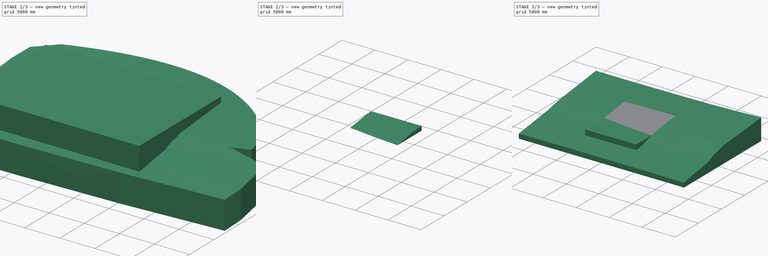
[diagram: build sequence overview — one tinted view per stage of 3, left to right]
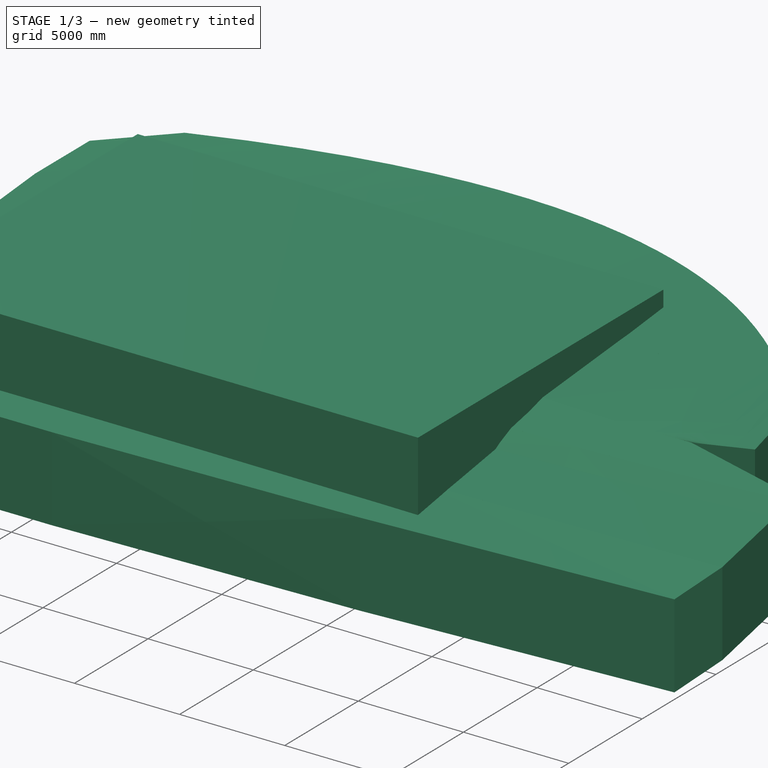
[diagram: stage 1 of 3 — iso view after this stage's code; geometry added in this stage tinted green]
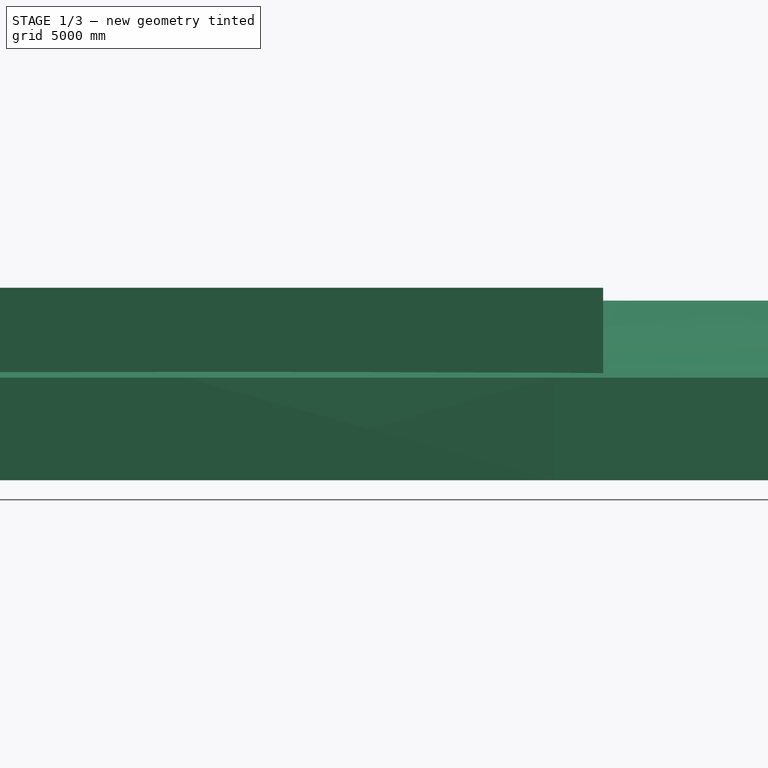
[diagram: stage 1 of 3 — front view after this stage's code; geometry added in this stage tinted green]
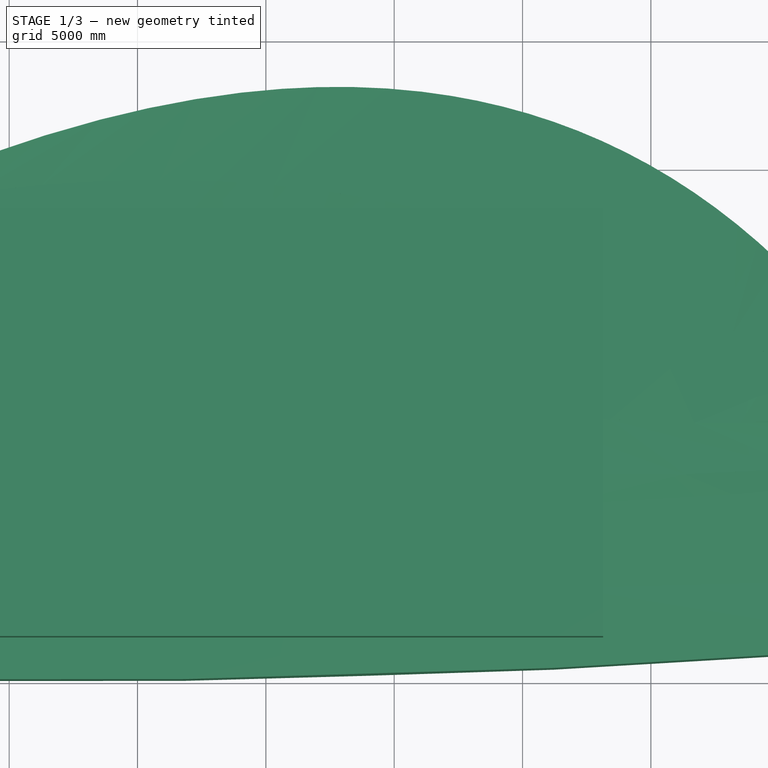
[diagram: stage 1 of 3 — top view after this stage's code; geometry added in this stage tinted green]
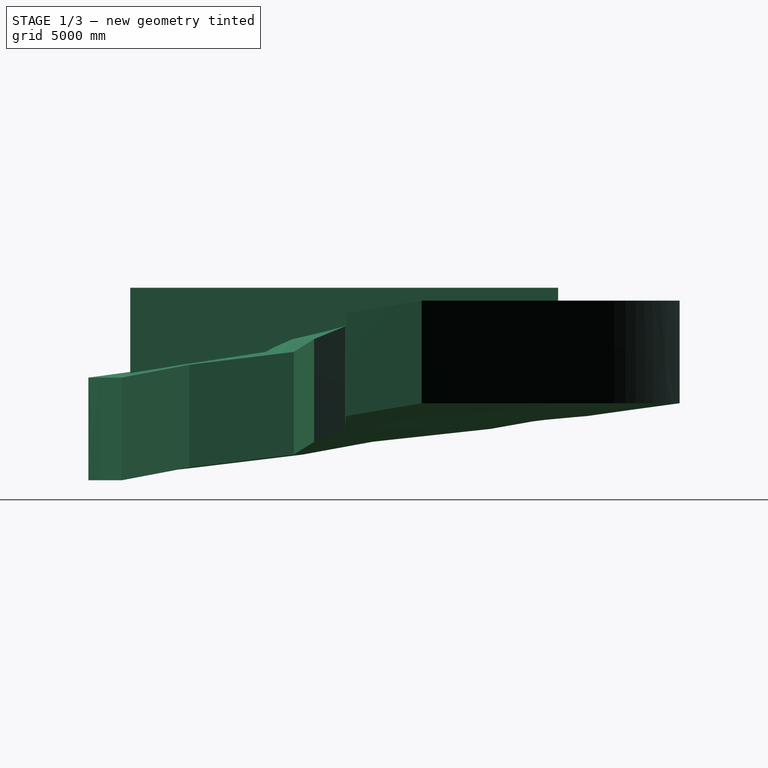
[diagram: stage 1 of 3 — right view after this stage's code; geometry added in this stage tinted green]
FCSTD DOCUMENT  (FreeCAD 1.0R38641 +468 (Git))
Label: Parametric_terrain_R02
License: All rights reserved
LicenseURL: https://en.wikipedia.org/wiki/All_rights_reserved
objects: Sketcher::SketchObject×7, Part::Extrusion×4, App::DocumentObjectGroup×3, Part::Part2DObjectPython×2, App::VarSet×2, Part::MultiCommon×2, Part::Cut×2, App::TextDocument×2, Part::Loft×1, Spreadsheet::Sheet×1
note: 25 computed .brp shape members not serialized (recipe doc carries the construction recipe); baked Part::Feature solids carry a one-line shape summary decoded from their .brp

FEATURE [Part::Part2DObjectPython] Rectangle  label="Terrain_boundaries"  # Draft 2D object (typed FeaturePython)
  Area = 4.16661e+08
  ChamferSize = 0
  Columns = 1
  FilletRadius = 0
  Height = 16666.5
  Length = 25000
  MakeFace = true
  Placement = pos=(-11861,-8288.75,0) rot=(0,0,1;0rad)
  Rows = 1
FEATURE [Part::Extrusion] Extrude002
  Base = -> Rectangle
  Dir = (0,0,1)
  DirMode = 2
  FaceMakerClass = Part::FaceMakerBullseye
  FaceMakerMode = 3
  LengthFwd = 4000
  LengthRev = 0
  Solid = false
  Symmetric = true
  expr: Base = VarSet.A_TerrainBoundaries
  expr: LengthFwd = VarSet.B_VolumeBodyHeight
FEATURE [Sketcher::SketchObject] Sketch  label="Curve_1.50"
  ArcFitTolerance = 1e-06
  FullyConstrained = false
  MakeInternals = false
  Placement = pos=(0,0,1500) rot=(0,0,1;0rad)
  sketch-geometry (6):
    g0: BSplineCurve PolesCount=3 KnotsCount=2 Degree=2 IsPeriodic=0
    g1: Circle [constr] CenterX=-11043 CenterY=10406.8 CenterZ=0 NormalX=0 NormalY=0 NormalZ=1 AngleXU=0 Radius=1
    g2: Circle [constr] CenterX=10907 CenterY=18336.8 CenterZ=0 NormalX=0 NormalY=0 NormalZ=1 AngleXU=0 Radius=1
    g3: Circle [constr] CenterX=22948.4 CenterY=3059.19 CenterZ=0 NormalX=0 NormalY=0 NormalZ=1 AngleXU=0 Radius=1
    g4: GeomPoint [constr] X=-11043 Y=10406.8 Z=0
    g5: GeomPoint [constr] X=22948.4 Y=3059.19 Z=0
  constraints (8):
    c: InternalAlignment(g1,g0)
    c: Weight(g1) = 1
    c: InternalAlignment(g2,g0)
    c: Equal(g2,g1)
    c: InternalAlignment(g3,g0)
    c: Equal(g3,g1)
    c: InternalAlignment(g4,g0)
    c: InternalAlignment(g5,g0)
FEATURE [Sketcher::SketchObject] Sketch001  label="Curve_1.00"
  ArcFitTolerance = 1e-06
  FullyConstrained = false
  MakeInternals = false
  Placement = pos=(0,0,1000) rot=(0,0,1;0rad)
  sketch-geometry (6):
    g0: BSplineCurve PolesCount=3 KnotsCount=2 Degree=2 IsPeriodic=0
    g1: Circle [constr] CenterX=-14270.5 CenterY=8552.75 CenterZ=0 NormalX=0 NormalY=0 NormalZ=1 AngleXU=0 Radius=1
    g2: Circle [constr] CenterX=7247.82 CenterY=12478.6 CenterZ=0 NormalX=0 NormalY=0 NormalZ=1 AngleXU=0 Radius=1
    g3: Circle [constr] CenterX=23291.7 CenterY=106.398 CenterZ=0 NormalX=0 NormalY=0 NormalZ=1 AngleXU=0 Radius=1
    g4: GeomPoint [constr] X=-14270.5 Y=8552.75 Z=0
    g5: GeomPoint [constr] X=23291.7 Y=106.398 Z=0
  constraints (8):
    c: InternalAlignment(g1,g0)
    c: Weight(g1) = 1
    c: InternalAlignment(g2,g0)
    c: Equal(g2,g1)
    c: InternalAlignment(g3,g0)
    c: Equal(g3,g1)
    c: InternalAlignment(g4,g0)
    c: InternalAlignment(g5,g0)
FEATURE [Sketcher::SketchObject] Sketch002  label="Curve_0.50"
  ArcFitTolerance = 1e-06
  FullyConstrained = false
  MakeInternals = false
  Placement = pos=(0,0,500) rot=(0,0,1;0rad)
  sketch-geometry (6):
    g0: BSplineCurve PolesCount=3 KnotsCount=2 Degree=2 IsPeriodic=0
    g1: Circle [constr] CenterX=-14888.5 CenterY=5737.3 CenterZ=0 NormalX=0 NormalY=0 NormalZ=1 AngleXU=0 Radius=1
    g2: Circle [constr] CenterX=5770.76 CenterY=-487.002 CenterZ=0 NormalX=0 NormalY=0 NormalZ=1 AngleXU=0 Radius=1
    g3: Circle [constr] CenterX=20278 CenterY=86.8037 CenterZ=0 NormalX=0 NormalY=0 NormalZ=1 AngleXU=0 Radius=1
    g4: GeomPoint [constr] X=-14888.5 Y=5737.3 Z=0
    g5: GeomPoint [constr] X=20278 Y=86.8037 Z=0
  constraints (8):
    c: InternalAlignment(g1,g0)
    c: Weight(g1) = 1
    c: InternalAlignment(g2,g0)
    c: Equal(g2,g1)
    c: InternalAlignment(g3,g0)
    c: Equal(g3,g1)
    c: InternalAlignment(g4,g0)
    c: InternalAlignment(g5,g0)
FEATURE [Sketcher::SketchObject] Sketch003  label="Curve_0.00"
  ArcFitTolerance = 1e-06
  FullyConstrained = false
  MakeInternals = false
  sketch-geometry (6):
    g0: BSplineCurve PolesCount=3 KnotsCount=2 Degree=2 IsPeriodic=0
    g1: Circle [constr] CenterX=-15000 CenterY=1146.58 CenterZ=0 NormalX=0 NormalY=0 NormalZ=1 AngleXU=0 Radius=1
    g2: Circle [constr] CenterX=7798.77 CenterY=-3639.72 CenterZ=0 NormalX=0 NormalY=0 NormalZ=1 AngleXU=0 Radius=1
    g3: Circle [constr] CenterX=26745.3 CenterY=-1127.56 CenterZ=0 NormalX=0 NormalY=0 NormalZ=1 AngleXU=0 Radius=1
    g4: GeomPoint [constr] X=-15000 Y=1146.58 Z=0
    g5: GeomPoint [constr] X=26745.3 Y=-1127.56 Z=0
  constraints (8):
    c: InternalAlignment(g1,g0)
    c: Weight(g1) = 1
    c: InternalAlignment(g2,g0)
    c: Equal(g2,g1)
    c: InternalAlignment(g3,g0)
    c: Equal(g3,g1)
    c: InternalAlignment(g4,g0)
    c: InternalAlignment(g5,g0)
FEATURE [Sketcher::SketchObject] Sketch004  label="Curve_-0.50"
  ArcFitTolerance = 1e-06
  FullyConstrained = false
  MakeInternals = false
  Placement = pos=(0,0,-500) rot=(0,0,1;0rad)
  sketch-geometry (6):
    g0: BSplineCurve PolesCount=3 KnotsCount=2 Degree=2 IsPeriodic=0
    g1: Circle [constr] CenterX=-15413.2 CenterY=-1576.61 CenterZ=0 NormalX=0 NormalY=0 NormalZ=1 AngleXU=0 Radius=1
    g2: Circle [constr] CenterX=5192.43 CenterY=-4647.25 CenterZ=0 NormalX=0 NormalY=0 NormalZ=1 AngleXU=0 Radius=1
    g3: Circle [constr] CenterX=25651.2 CenterY=-1919.96 CenterZ=0 NormalX=0 NormalY=0 NormalZ=1 AngleXU=0 Radius=1
    g4: GeomPoint [constr] X=-15413.2 Y=-1576.61 Z=0
    g5: GeomPoint [constr] X=25651.2 Y=-1919.96 Z=0
  constraints (8):
    c: InternalAlignment(g1,g0)
    c: Weight(g1) = 1
    c: InternalAlignment(g2,g0)
    c: Equal(g2,g1)
    c: InternalAlignment(g3,g0)
    c: Equal(g3,g1)
    c: InternalAlignment(g4,g0)
    c: InternalAlignment(g5,g0)
FEATURE [Sketcher::SketchObject] Sketch005  label="Curve_-1.00"
  ArcFitTolerance = 1e-06
  FullyConstrained = false
  MakeInternals = false
  Placement = pos=(0,0,-1000) rot=(0,0,1;0rad)
  sketch-geometry (6):
    g0: BSplineCurve PolesCount=3 KnotsCount=2 Degree=2 IsPeriodic=0
    g1: Circle [constr] CenterX=-16809.9 CenterY=-5704.62 CenterZ=0 NormalX=0 NormalY=0 NormalZ=1 AngleXU=0 Radius=1
    g2: Circle [constr] CenterX=4597.35 CenterY=-6897.63 CenterZ=0 NormalX=0 NormalY=0 NormalZ=1 AngleXU=0 Radius=1
    g3: Circle [constr] CenterX=26001.3 CenterY=-5985.66 CenterZ=0 NormalX=0 NormalY=0 NormalZ=1 AngleXU=0 Radius=1
    g4: GeomPoint [constr] X=-16809.9 Y=-5704.62 Z=0
    g5: GeomPoint [constr] X=26001.3 Y=-5985.66 Z=0
  constraints (8):
    c: InternalAlignment(g1,g0)
    c: Weight(g1) = 1
    c: InternalAlignment(g2,g0)
    c: Equal(g2,g1)
    c: InternalAlignment(g3,g0)
    c: Equal(g3,g1)
    c: InternalAlignment(g4,g0)
    c: InternalAlignment(g5,g0)
FEATURE [Sketcher::SketchObject] Sketch006  label="Curve_-1.50"
  ArcFitTolerance = 1e-06
  FullyConstrained = false
  MakeInternals = false
  Placement = pos=(0,0,-1500) rot=(0,0,1;0rad)
  sketch-geometry (6):
    g0: BSplineCurve PolesCount=3 KnotsCount=2 Degree=2 IsPeriodic=0
    g1: Circle [constr] CenterX=-17540.7 CenterY=-9921.21 CenterZ=0 NormalX=0 NormalY=0 NormalZ=1 AngleXU=0 Radius=1
    g2: Circle [constr] CenterX=4047.04 CenterY=-10214 CenterZ=0 NormalX=0 NormalY=0 NormalZ=1 AngleXU=0 Radius=1
    g3: Circle [constr] CenterX=25563.4 CenterY=-8617.35 CenterZ=0 NormalX=0 NormalY=0 NormalZ=1 AngleXU=0 Radius=1
    g4: GeomPoint [constr] X=-17540.7 Y=-9921.21 Z=0
    g5: GeomPoint [constr] X=25563.4 Y=-8617.35 Z=0
  constraints (8):
    c: InternalAlignment(g1,g0)
    c: Weight(g1) = 1
    c: InternalAlignment(g2,g0)
    c: Equal(g2,g1)
    c: InternalAlignment(g3,g0)
    c: Equal(g3,g1)
    c: InternalAlignment(g4,g0)
    c: InternalAlignment(g5,g0)
FEATURE [App::VarSet] VarSet  label="VarSet_Terrain_#_"
  A_ContourLines = -> [Sketch,Sketch001,Sketch002,Sketch003,Sketch004,Sketch005,Sketch006]
  A_CutVolume = false
  A_FillVolume = true
  A_TerrainBoundaries = -> Rectangle
  A_TerrainFinal = true
  A_TerrainOriginal = false
  B_CutHeight = 1000
  B_FillHeight = 1000
  B_PlateauLevel = 0
  B_VolumeBodyHeight = 4000
FEATURE [Part::Loft] Loft
  Closed = false
  MaxDegree = 5
  Ruled = true
  Sections = -> [Sketch,Sketch001,Sketch002,Sketch003,Sketch004,Sketch005,Sketch006]
  Solid = false
  expr: Sections = VarSet.A_ContourLines
FEATURE [Part::Extrusion] Extrude001
  Base = -> Loft
  Dir = (0,0,-1)
  DirMode = 0
  FaceMakerClass = Part::FaceMakerBullseye
  FaceMakerMode = 3
  LengthFwd = 4000
  LengthRev = 0
  Solid = false
  Symmetric = false
  expr: LengthFwd = VarSet.B_VolumeBodyHeight
FEATURE [Part::Part2DObjectPython] Rectangle001  label="Plateau_boundaries_"  # Draft 2D object (typed FeaturePython)
  Area = 6.62603e+07
  ChamferSize = 0
  Columns = 1
  FilletRadius = 0
  Height = 8549.66
  Length = 7750.05
  MakeFace = true
  Placement = pos=(-4224.33,-4872.97,0) rot=(0,0,1;0rad)
  Rows = 1
  expr: .Placement.Base.z = VarSet.B_PlateauLevel
FEATURE [Part::Extrusion] Extrude  label="Cut_"
  Base = -> Rectangle001
  Dir = (0,0,1)
  DirMode = 2
  FaceMakerClass = Part::FaceMakerBullseye
  FaceMakerMode = 3
  LengthFwd = 1000
  LengthRev = 0
  Solid = false
  Symmetric = false
  expr: Base = VarSet001.A_PlateauBoundaries
  expr: LengthFwd = VarSet.B_CutHeight
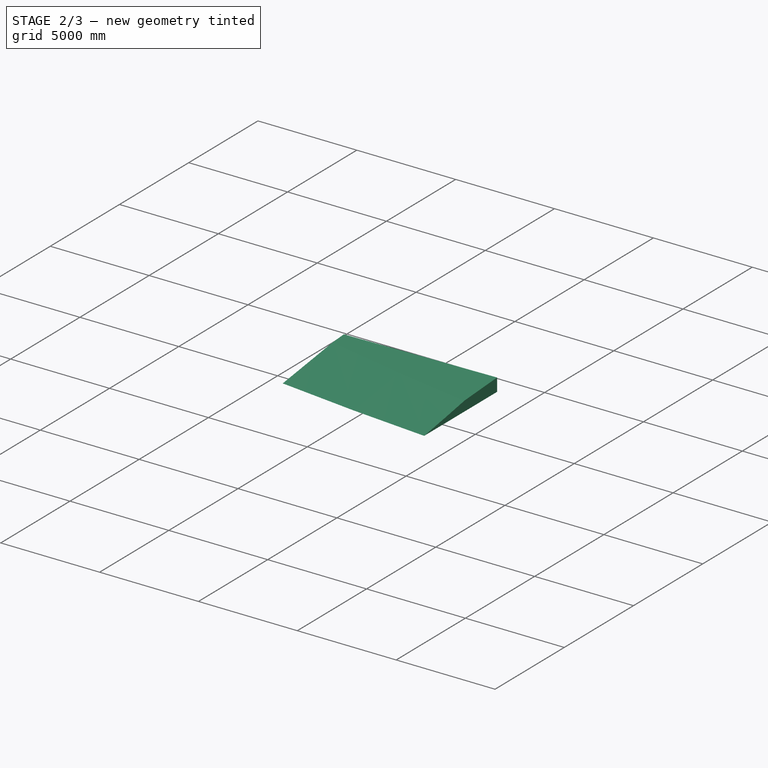
[diagram: stage 2 of 3 — iso view after this stage's code; geometry added in this stage tinted green]
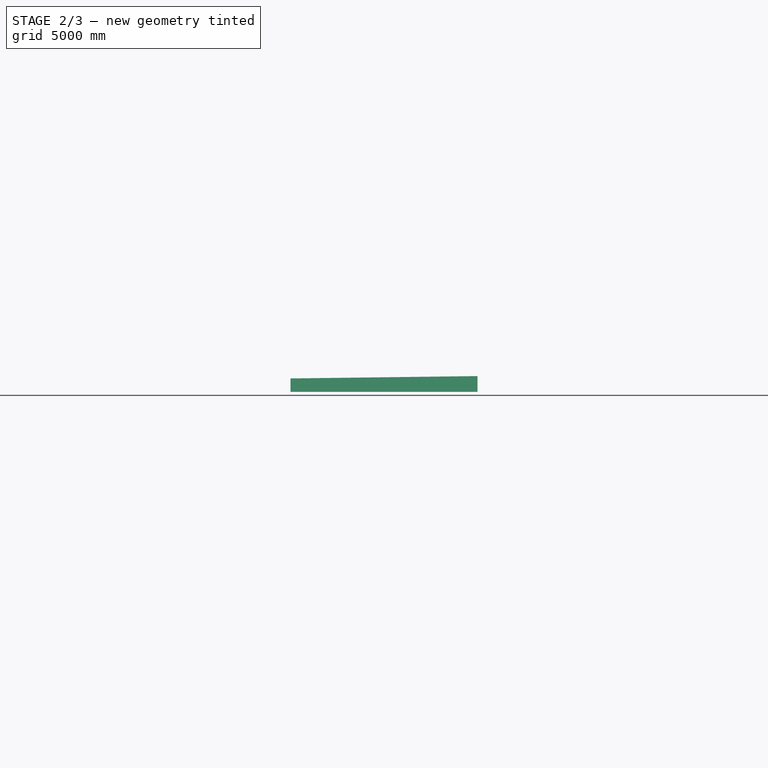
[diagram: stage 2 of 3 — front view after this stage's code; geometry added in this stage tinted green]
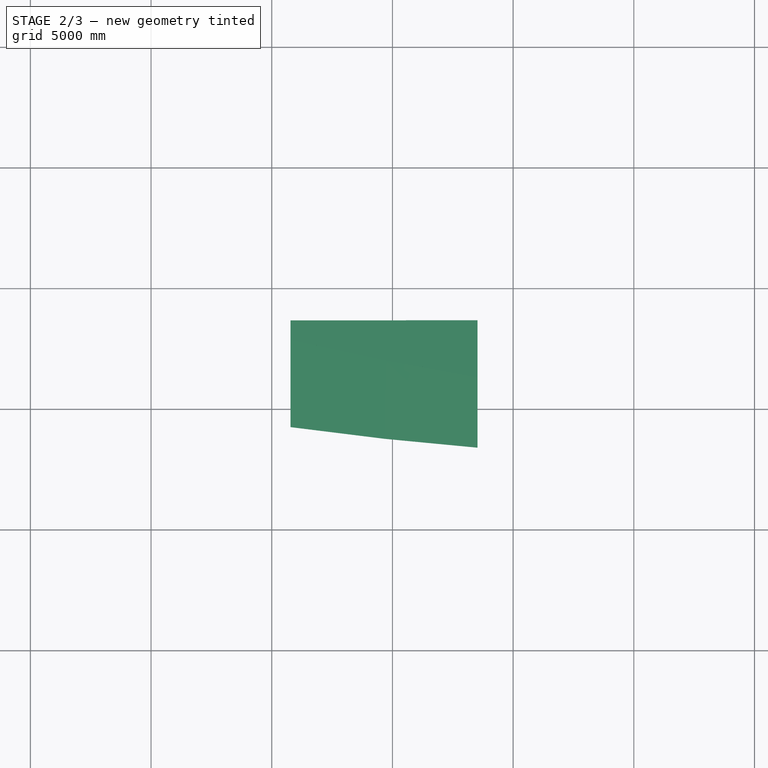
[diagram: stage 2 of 3 — top view after this stage's code; geometry added in this stage tinted green]
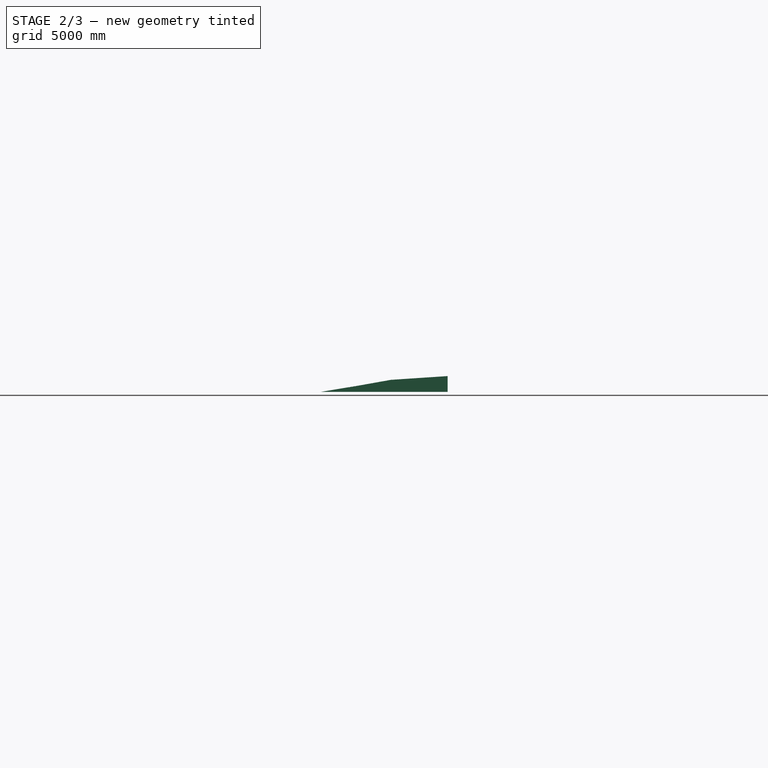
[diagram: stage 2 of 3 — right view after this stage's code; geometry added in this stage tinted green]
FEATURE [Part::MultiCommon] Common  label="Terrain_original_"
  Shapes = -> [Extrude002,Extrude001]
  expr: Visibility = VarSet.A_TerrainOriginal
FEATURE [Part::MultiCommon] Common001  label="Cut_volume_"
  Shapes = -> [Common,Extrude]
  expr: Visibility = VarSet.A_CutVolume
FEATURE [App::DocumentObjectGroup] Group001  label="Terrain_parts_"
  Group = -> [Cut,Cut001,Common001]
FEATURE [App::VarSet] VarSet001  label="VarSet_Plateau_#_"
  A_PlateauBoundaries = -> Rectangle001
FEATURE [Spreadsheet::Sheet] Spreadsheet  label="Earthmoving_quantities_"
  cells = A1='Earthmoving; A3='Plateau area; B3==VarSet001.A_PlateauBoundaries.Shape.Area; A4='Cut; B4==Common001.Shape.Volume; A5='Fill; B5==Cut.Shape.Volume; A6='Total; B6==B4 + B5; A7='Volume/area; B7==B6 / B3
FEATURE [App::TextDocument] Text_document002  label="Guidelines_terrain_file_configurations_"
  Text = Some guidelines for using this component file.\n-----------------------------------------\n\n1. Basic workflow for component configuration\n\nThrough the properties window ("VarSet_Terrain_#_") you can select the basic component parts (contour lines, terrain boundaries) from the elements of an existing topographic survey file. You can also set some dimensions like cut and fill height and plateau level. For earthmoving, select the projected plateau boundaries in the properties window of "VarSet_Earhmoving_#_.\n\nSee also:\nhttps://forum.freecad.org/viewtopic.php?p=803014#p803014
FEATURE [App::TextDocument] Text_document003  label="Guidelines_new_objects_properties_"
  Text = <blob: 3302 chars omitted>
FEATURE [App::DocumentObjectGroup] Group250  label="Guidelines_"
  Group = -> [Text_document003,Text_document002]
FEATURE [App::DocumentObjectGroup] Group  label="Parametric_terrain_#_"
  Group = -> [VarSet,VarSet001,Group001,Spreadsheet,Group250]
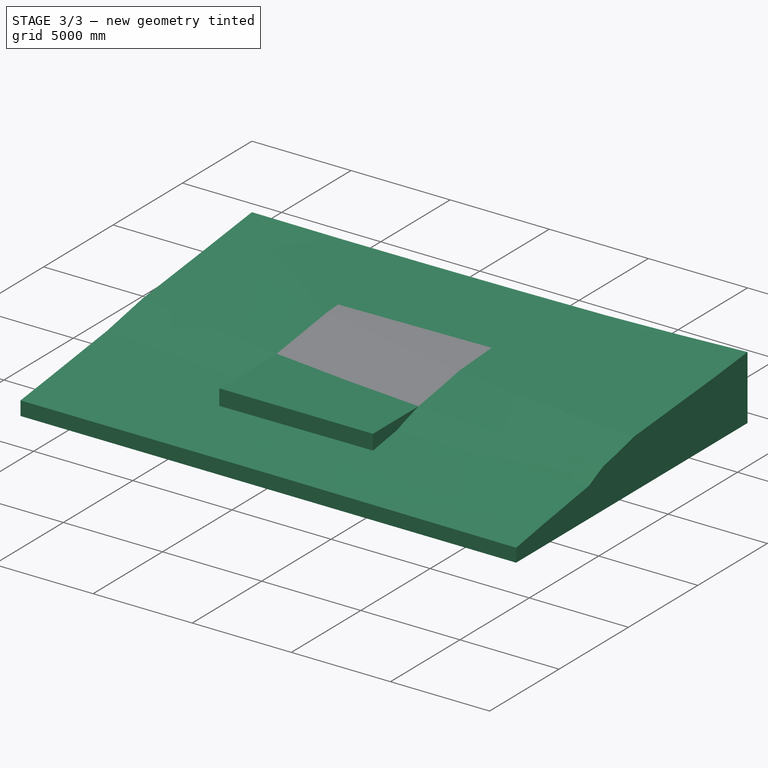
[diagram: stage 3 of 3 — iso view after this stage's code; geometry added in this stage tinted green]
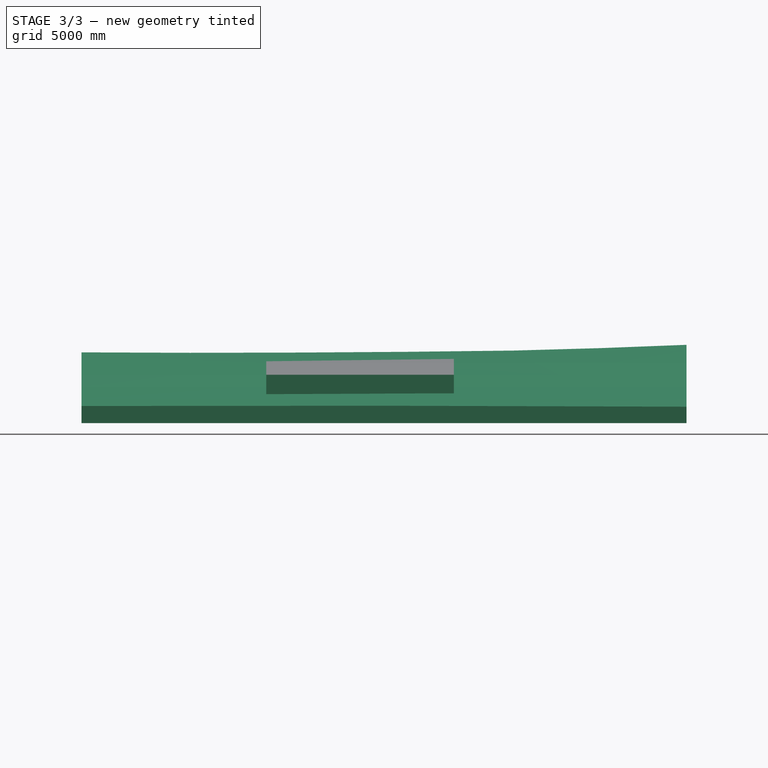
[diagram: stage 3 of 3 — front view after this stage's code; geometry added in this stage tinted green]
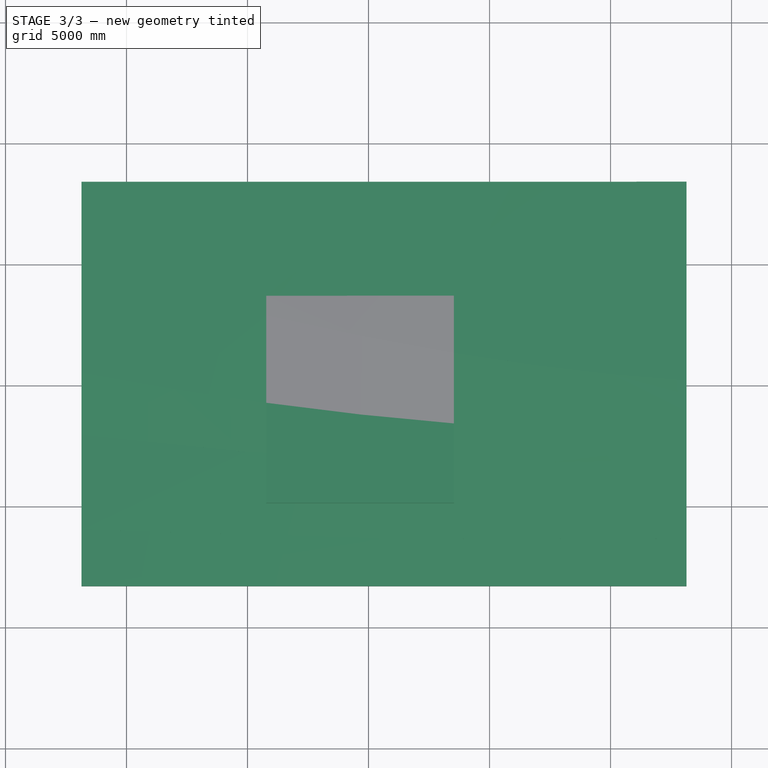
[diagram: stage 3 of 3 — top view after this stage's code; geometry added in this stage tinted green]
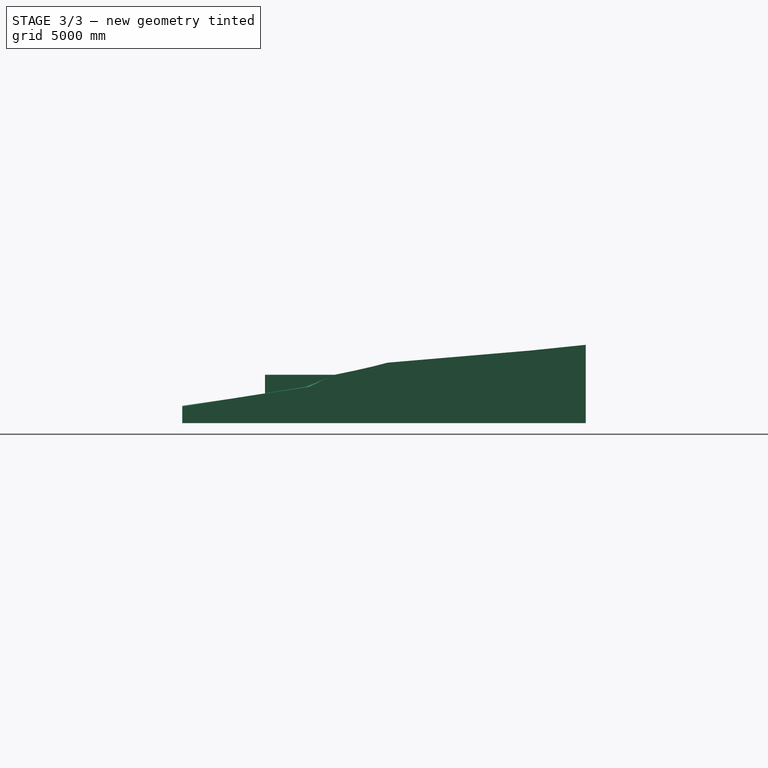
[diagram: stage 3 of 3 — right view after this stage's code; geometry added in this stage tinted green]
FEATURE [Part::Extrusion] Extrude003  label="Fill_"
  Base = -> Rectangle001
  Dir = (0,0,1)
  DirMode = 2
  FaceMakerClass = Part::FaceMakerBullseye
  FaceMakerMode = 3
  LengthFwd = 1000
  LengthRev = 0
  Reversed = true
  Solid = false
  Symmetric = false
  expr: Base = VarSet001.A_PlateauBoundaries
  expr: LengthFwd = VarSet.B_FillHeight
FEATURE [Part::Cut] Cut  label="Fill_volume_"
  Base = -> Extrude003
  Tool = -> Common
  expr: Visibility = VarSet.A_FillVolume
FEATURE [Part::Cut] Cut001  label=" Terrain_02_"
  Base = -> Common
  Tool = -> Extrude
  expr: Visibility = VarSet.A_TerrainFinal
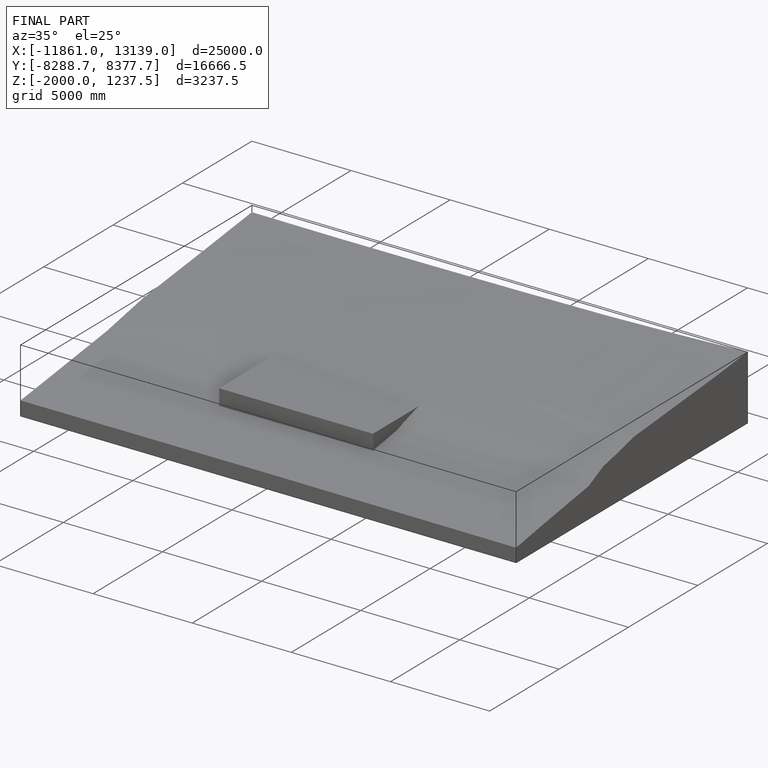
[diagram: finished part — iso view with bounding-box wireframe]
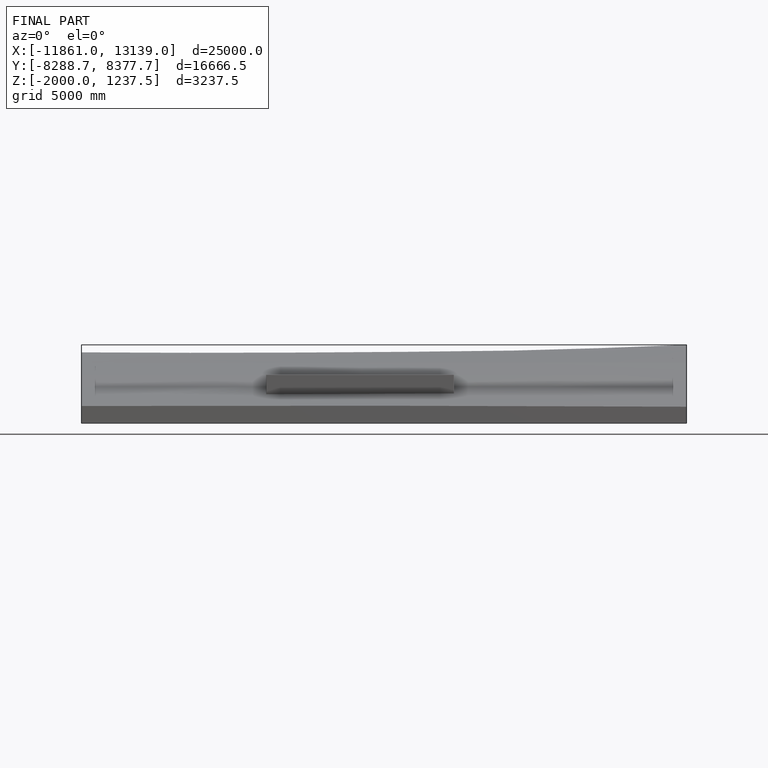
[diagram: finished part — front view with bounding-box wireframe]
